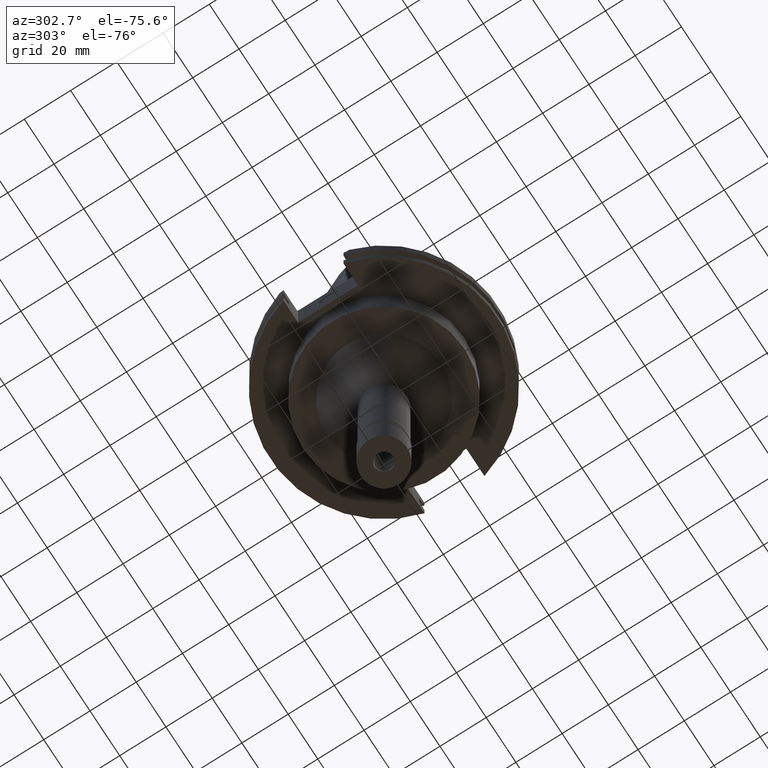
[diagram: clean part render]
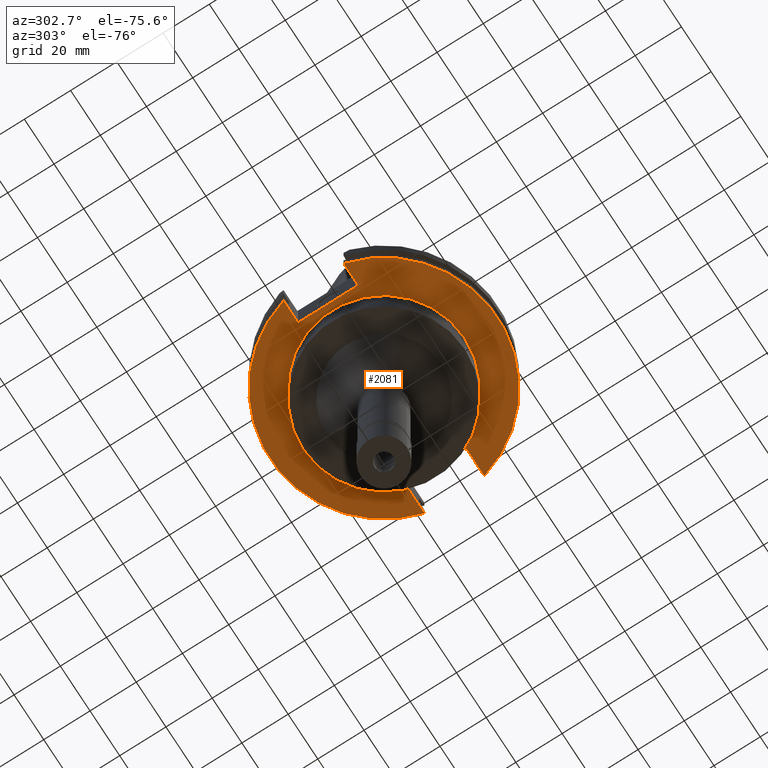
[diagram: same view with one face highlighted and labeled with its STEP entity id]
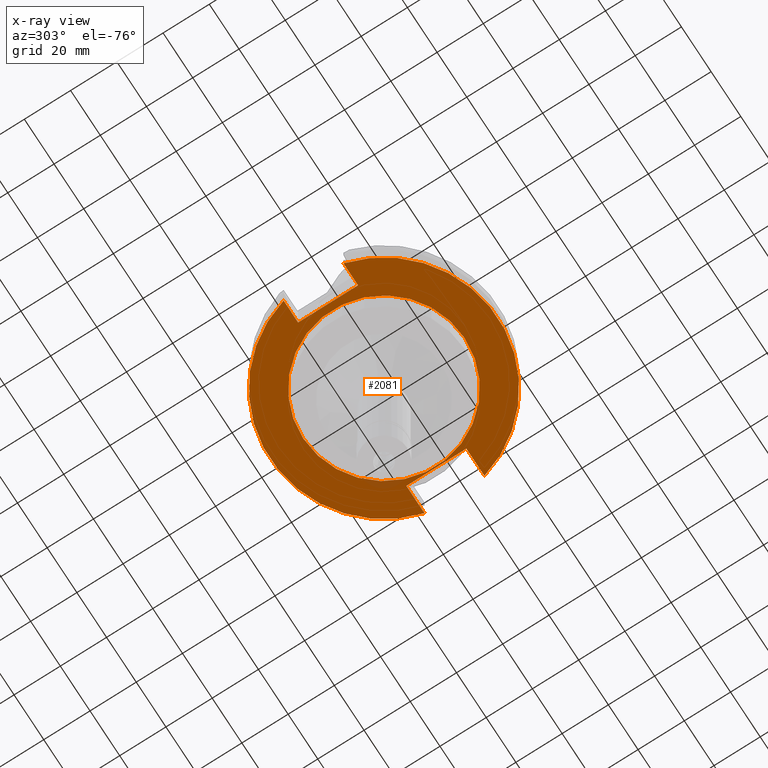
[diagram: x-ray of the same camera — body ghosted, the highlighted face saturated]
A machine part, auxiliary view. The second image highlights one B-rep face of the part: STEP entity #2081.
The next image is the same camera in x-ray: the body ghosted, the highlighted face saturated — about 1% of this face is hidden behind the body in this view.
In plain terms, the highlighted planar face has unit normal (0, 0, -1).
Its self-contained STEP definition (entity closure, byte-faithful):
#40 = VERTEX_POINT ( 'NONE', #2172 ) ;
#56 = DIRECTION ( 'NONE',  ( 0.0000000000000000000, 0.0000000000000000000, -1.000000000000000000 ) ) ;
#65 = CARTESIAN_POINT ( 'NONE',  ( -37.67999999999999972, -12.95500000000000007, -19.05000000000000071 ) ) ;
#86 = EDGE_LOOP ( 'NONE', ( #2589, #1103, #2106, #1271, #967, #2596, #694, #94 ) ) ;
#94 = ORIENTED_EDGE ( 'NONE', *, *, #1018, .T. ) ;
#112 = CARTESIAN_POINT ( 'NONE',  ( 35.27000000000000313, 12.95500000000000007, -19.05000000000000071 ) ) ;
#117 = CARTESIAN_POINT ( 'NONE',  ( -37.67999999999999972, -12.95500000000000007, -19.05000000000000071 ) ) ;
#124 = VERTEX_POINT ( 'NONE', #2601 ) ;
#297 = LINE ( 'NONE', #3267, #3035 ) ;
#314 = PLANE ( 'NONE',  #3027 ) ;
#325 = VERTEX_POINT ( 'NONE', #117 ) ;
#406 = CARTESIAN_POINT ( 'NONE',  ( 0.0000000000000000000, 2.603966489026999937E-14, -19.05000000000000071 ) ) ;
#455 = EDGE_LOOP ( 'NONE', ( #1961, #2015 ) ) ;
#611 = CIRCLE ( 'NONE', #2723, 34.92499999999999716 ) ;
#619 = DIRECTION ( 'NONE',  ( 0.0000000000000000000, 0.0000000000000000000, -1.000000000000000000 ) ) ;
#635 = DIRECTION ( 'NONE',  ( 0.0000000000000000000, -1.000000000000000000, 0.0000000000000000000 ) ) ;
#694 = ORIENTED_EDGE ( 'NONE', *, *, #1521, .F. ) ;
#725 = VECTOR ( 'NONE', #2733, 1000.000000000000000 ) ;
#732 = AXIS2_PLACEMENT_3D ( 'NONE', #406, #2436, #635 ) ;
#868 = VERTEX_POINT ( 'NONE', #3168 ) ;
#883 = LINE ( 'NONE', #112, #2225 ) ;
#913 = DIRECTION ( 'NONE',  ( 0.0000000000000000000, -1.000000000000000000, 0.0000000000000000000 ) ) ;
#943 = VECTOR ( 'NONE', #2767, 1000.000000000000000 ) ;
#967 = ORIENTED_EDGE ( 'NONE', *, *, #2926, .T. ) ;
#1018 = EDGE_CURVE ( 'NONE', #325, #124, #3079, .T. ) ;
#1052 = VERTEX_POINT ( 'NONE', #1134 ) ;
#1103 = ORIENTED_EDGE ( 'NONE', *, *, #1594, .F. ) ;
#1104 = CARTESIAN_POINT ( 'NONE',  ( 0.0000000000000000000, 2.603966489026999937E-14, -19.05000000000000071 ) ) ;
#1134 = CARTESIAN_POINT ( 'NONE',  ( 47.47671146204000081, 12.95500000000000007, -19.05000000000000071 ) ) ;
#1146 = DIRECTION ( 'NONE',  ( 0.0000000000000000000, 0.0000000000000000000, 1.000000000000000000 ) ) ;
#1167 = CARTESIAN_POINT ( 'NONE',  ( -47.47671146204000081, -12.95500000000000007, -19.05000000000000071 ) ) ;
#1219 = DIRECTION ( 'NONE',  ( 0.0000000000000000000, 1.000000000000000000, 0.0000000000000000000 ) ) ;
#1271 = ORIENTED_EDGE ( 'NONE', *, *, #2164, .T. ) ;
#1281 = VERTEX_POINT ( 'NONE', #2564 ) ;
#1285 = CARTESIAN_POINT ( 'NONE',  ( 35.27000000000000313, 12.95500000000000007, -19.05000000000000071 ) ) ;
#1351 = CARTESIAN_POINT ( 'NONE',  ( 0.0000000000000000000, -34.92499999999999716, -19.05000000000000071 ) ) ;
#1428 = VERTEX_POINT ( 'NONE', #1625 ) ;
#1474 = EDGE_CURVE ( 'NONE', #3322, #1428, #611, .T. ) ;
#1521 = EDGE_CURVE ( 'NONE', #325, #1600, #2661, .T. ) ;
#1591 = FACE_OUTER_BOUND ( 'NONE', #86, .T. ) ;
#1594 = EDGE_CURVE ( 'NONE', #1052, #40, #3212, .T. ) ;
#1595 = DIRECTION ( 'NONE',  ( -1.000000000000000000, -1.795085297572000011E-14, 0.0000000000000000000 ) ) ;
#1600 = VERTEX_POINT ( 'NONE', #1167 ) ;
#1617 = EDGE_CURVE ( 'NONE', #1428, #3322, #3124, .T. ) ;
#1625 = CARTESIAN_POINT ( 'NONE',  ( 0.0000000000000000000, 34.92499999999999716, -19.05000000000000071 ) ) ;
#1655 = CARTESIAN_POINT ( 'NONE',  ( -37.67999999999999972, 12.95500000000000007, -19.05000000000000071 ) ) ;
#1722 = VECTOR ( 'NONE', #3147, 1000.000000000000000 ) ;
#1867 = CIRCLE ( 'NONE', #732, 49.21249999999999858 ) ;
#1881 = VERTEX_POINT ( 'NONE', #1285 ) ;
#1888 = AXIS2_PLACEMENT_3D ( 'NONE', #3201, #1146, #1219 ) ;
#1926 = CARTESIAN_POINT ( 'NONE',  ( 0.0000000000000000000, 2.603966489026999937E-14, -19.05000000000000071 ) ) ;
#1961 = ORIENTED_EDGE ( 'NONE', *, *, #1617, .F. ) ;
#2015 = ORIENTED_EDGE ( 'NONE', *, *, #1474, .F. ) ;
#2053 = LINE ( 'NONE', #2539, #943 ) ;
#2081 = ADVANCED_FACE ( 'NONE', ( #1591, #2625 ), #314, .T. ) ;
#2106 = ORIENTED_EDGE ( 'NONE', *, *, #3190, .F. ) ;
#2164 = EDGE_CURVE ( 'NONE', #1881, #868, #883, .T. ) ;
#2172 = CARTESIAN_POINT ( 'NONE',  ( -47.47671146204000081, 12.95500000000000007, -19.05000000000000071 ) ) ;
#2174 = DIRECTION ( 'NONE',  ( 1.000000000000000000, -1.411572756165000194E-14, 0.0000000000000000000 ) ) ;
#2192 = EDGE_CURVE ( 'NONE', #124, #40, #3215, .T. ) ;
#2194 = DIRECTION ( 'NONE',  ( 0.0000000000000000000, -1.000000000000000000, 0.0000000000000000000 ) ) ;
#2225 = VECTOR ( 'NONE', #2194, 1000.000000000000000 ) ;
#2360 = CARTESIAN_POINT ( 'NONE',  ( -37.67999999999999972, -12.95500000000000007, -19.05000000000000071 ) ) ;
#2435 = CARTESIAN_POINT ( 'NONE',  ( 0.0000000000000000000, 0.0000000000000000000, -19.05000000000000071 ) ) ;
#2436 = DIRECTION ( 'NONE',  ( 0.0000000000000000000, 0.0000000000000000000, 1.000000000000000000 ) ) ;
#2502 = AXIS2_PLACEMENT_3D ( 'NONE', #1926, #2933, #2960 ) ;
#2539 = CARTESIAN_POINT ( 'NONE',  ( 35.27000000000000313, 12.95500000000000007, -19.05000000000000071 ) ) ;
#2564 = CARTESIAN_POINT ( 'NONE',  ( 47.47671146204000081, -12.95500000000000007, -19.05000000000000071 ) ) ;
#2589 = ORIENTED_EDGE ( 'NONE', *, *, #2192, .T. ) ;
#2596 = ORIENTED_EDGE ( 'NONE', *, *, #3008, .F. ) ;
#2601 = CARTESIAN_POINT ( 'NONE',  ( -37.67999999999999972, 12.95500000000000007, -19.05000000000000071 ) ) ;
#2625 = FACE_BOUND ( 'NONE', #455, .T. ) ;
#2637 = VECTOR ( 'NONE', #1595, 1000.000000000000000 ) ;
#2661 = LINE ( 'NONE', #2360, #2637 ) ;
#2723 = AXIS2_PLACEMENT_3D ( 'NONE', #1104, #56, #3154 ) ;
#2733 = DIRECTION ( 'NONE',  ( -1.000000000000000000, 1.813217472294999948E-14, 0.0000000000000000000 ) ) ;
#2767 = DIRECTION ( 'NONE',  ( 1.000000000000000000, 1.455229645530999953E-14, 0.0000000000000000000 ) ) ;
#2926 = EDGE_CURVE ( 'NONE', #868, #1281, #297, .T. ) ;
#2933 = DIRECTION ( 'NONE',  ( 0.0000000000000000000, 0.0000000000000000000, -1.000000000000000000 ) ) ;
#2960 = DIRECTION ( 'NONE',  ( 0.0000000000000000000, 1.000000000000000000, 0.0000000000000000000 ) ) ;
#3008 = EDGE_CURVE ( 'NONE', #1600, #1281, #1867, .T. ) ;
#3027 = AXIS2_PLACEMENT_3D ( 'NONE', #2435, #619, #913 ) ;
#3035 = VECTOR ( 'NONE', #2174, 1000.000000000000000 ) ;
#3079 = LINE ( 'NONE', #65, #1722 ) ;
#3124 = CIRCLE ( 'NONE', #2502, 34.92499999999999716 ) ;
#3147 = DIRECTION ( 'NONE',  ( 0.0000000000000000000, 1.000000000000000000, 0.0000000000000000000 ) ) ;
#3154 = DIRECTION ( 'NONE',  ( 0.0000000000000000000, -1.000000000000000000, 0.0000000000000000000 ) ) ;
#3168 = CARTESIAN_POINT ( 'NONE',  ( 35.27000000000000313, -12.95500000000000007, -19.05000000000000071 ) ) ;
#3190 = EDGE_CURVE ( 'NONE', #1881, #1052, #2053, .T. ) ;
#3201 = CARTESIAN_POINT ( 'NONE',  ( 0.0000000000000000000, 2.603966489026999937E-14, -19.05000000000000071 ) ) ;
#3212 = CIRCLE ( 'NONE', #1888, 49.21249999999999858 ) ;
#3215 = LINE ( 'NONE', #1655, #725 ) ;
#3267 = CARTESIAN_POINT ( 'NONE',  ( 35.27000000000000313, -12.95500000000000007, -19.05000000000000071 ) ) ;
#3322 = VERTEX_POINT ( 'NONE', #1351 ) ;